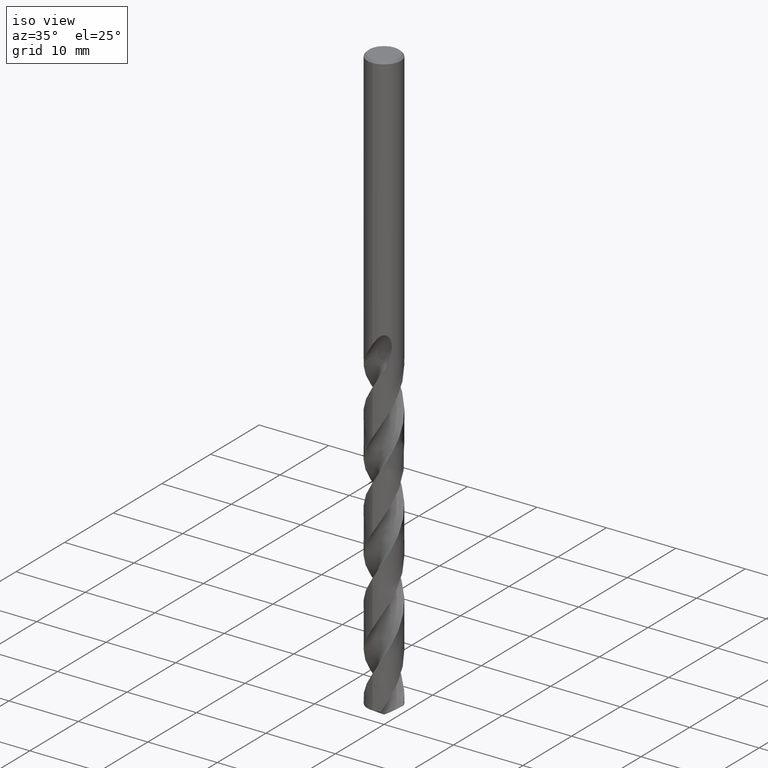
[diagram: clean part render]
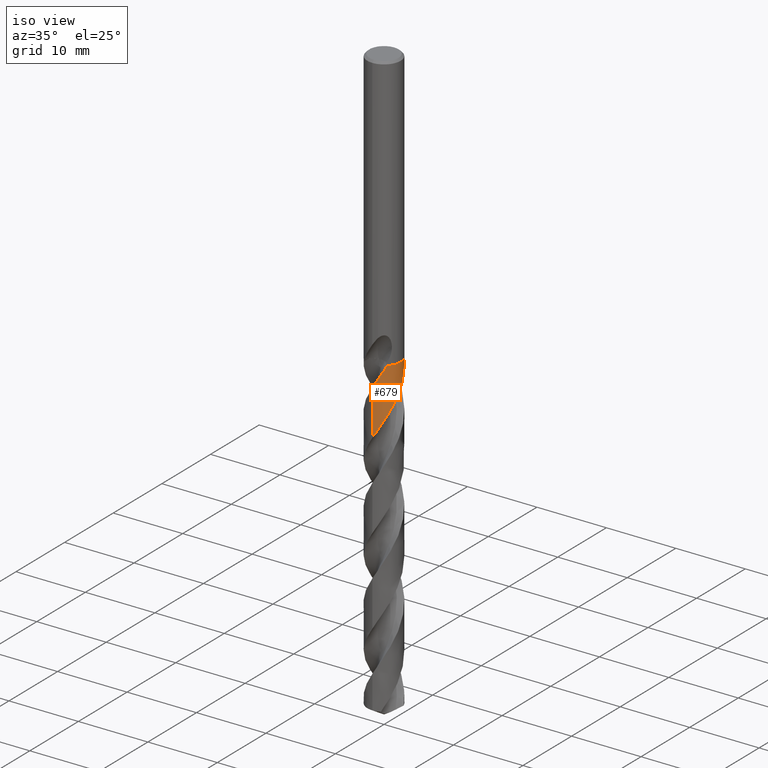
[diagram: same view with one face highlighted and labeled with its STEP entity id]
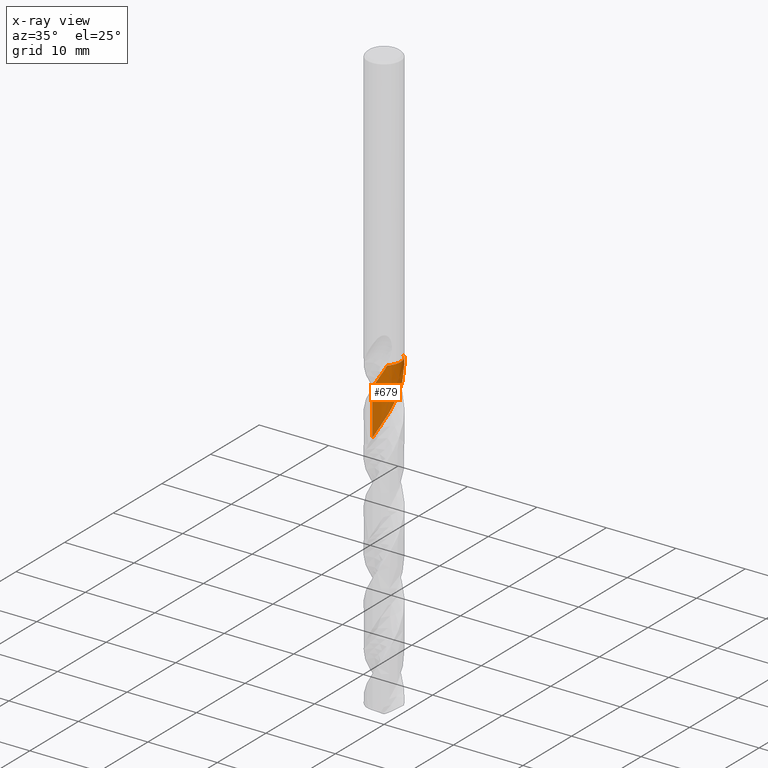
[diagram: x-ray of the same camera — body ghosted, the highlighted face saturated]
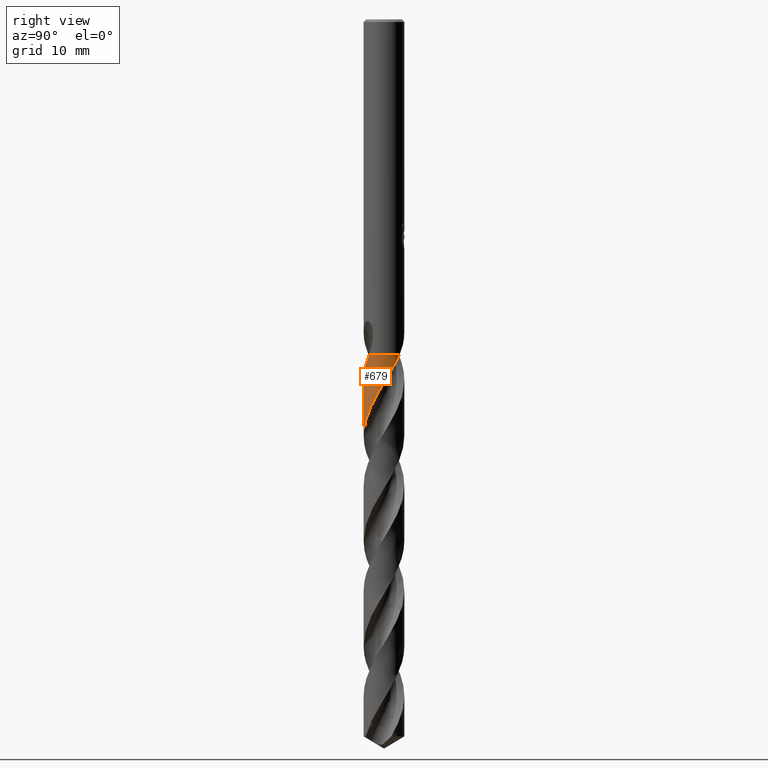
[diagram: same view with one face highlighted and labeled with its STEP entity id]
A machine part, iso view. The second image highlights one B-rep face of the part: STEP entity #679.
The next image is the same camera in x-ray: the body ghosted, the highlighted face saturated — about 0% of this face is hidden behind the body in this view.
A second angle (right view) of the same face is appended — the face is thin or edge-on in the first view.
In plain terms, the highlighted conical surface has half-angle 0 deg.
Its self-contained STEP definition (entity closure, byte-faithful):
#327=EDGE_CURVE('',#575,#745,#830,.T.);
#365=EDGE_CURVE('',#623,#577,#872,.T.);
#411=EDGE_CURVE('',#637,#745,#921,.T.);
#437=EDGE_CURVE('',#577,#443,#949,.T.);
#443=VERTEX_POINT('',#956);
#491=EDGE_CURVE('',#443,#575,#1011,.T.);
#575=VERTEX_POINT('',#1103);
#577=VERTEX_POINT('',#1105);
#623=VERTEX_POINT('',#1154);
#637=VERTEX_POINT('',#1169);
#679=ADVANCED_FACE('',(#1216),#1217,.T.);
#727=EDGE_CURVE('',#637,#623,#1269,.T.);
#745=VERTEX_POINT('',#1288);
#830=B_SPLINE_CURVE_WITH_KNOTS('',3,(#2235,#2236,#2237,#2238,#2239,#2240,#2241,#2242,#2243,#2244,#2245,#2246,#2247,#2248,#2249,#2250,#2251,#2252,#2253,#2254,#2255,#2256,#2257,#2258,#2259,#2260,#2261,#2262,#2263,#2264,#2265,#2266,#2267,#2268,#2269,#2270,#2271,#2272,#2273,#2274,#2275,#2276,#2277,#2278,#2279,#2280,#2281,#2282,#2283,#2284,#2285,#2286,#2287,#2288,#2289,#2290,#2291,#2292,#2293,#2294,#2295,#2296,#2297,#2298,#2299,#2300,#2301,#2302,#2303,#2304,#2305,#2306,#2307,#2308,#2309,#2310,#2311,#2312,#2313,#2314,#2315,#2316,#2317,#2318,#2319,#2320,#2321,#2322,#2323,#2324,#2325,#2326,#2327,#2328,#2329,#2330,#2331,#2332,#2333,#2334,#2335,#2336,#2337,#2338,#2339,#2340,#2341,#2342,#2343,#2344,#2345,#2346,#2347,#2348,#2349,#2350,#2351,#2352,#2353,#2354,#2355,#2356,#2357,#2358,#2359,#2360,#2361,#2362,#2363,#2364,#2365,#2366,#2367,#2368,#2369,#2370,#2371,#2372,#2373,#2374,#2375,#2376,#2377,#2378,#2379,#2380,#2381,#2382,#2383,#2384,#2385,#2386,#2387,#2388,#2389,#2390,#2391,#2392,#2393,#2394,#2395,#2396,#2397,#2398,#2399,#2400,#2401,#2402,#2403,#2404,#2405,#2406,#2407,#2408,#2409,#2410,#2411,#2412,#2413,#2414,#2415,#2416,#2417,#2418),.UNSPECIFIED.,.F.,.F.,(4,2,2,2,2,2,2,2,2,2,2,2,2,2,2,2,2,2,2,2,2,2,2,2,2,2,2,2,2,2,2,2,2,2,2,2,2,2,2,2,2,2,2,2,2,2,2,2,2,2,2,2,2,2,2,2,2,2,2,2,2,2,2,2,2,2,2,2,2,2,2,2,2,2,2,2,2,2,2,2,2,2,2,2,2,2,2,2,2,2,2,4),(0.0,0.143438582967313,0.18897240022158,0.21174478823111,0.226388954967888,0.238210347564266,0.247665539664253,0.255166162593993,0.261073932524339,0.265699092194842,0.269302027971929,0.272097249755301,0.27425874353166,0.275925844603622,0.277209002035574,0.545270615740692,0.610968527223378,0.647367519281041,0.67816058820399,0.714936742925638,0.782410715611551,0.828193026804679,0.910436755220717,1.25855043702384,1.43930409631707,1.58973860107341,1.66433431866712,1.82950084461108,3.16551249158848,3.67301193156523,4.50496680971604,5.83580409702664,6.68709595869321,6.76436596690435,7.87950224667467,9.20199859784488,9.62999246923701,10.7423405143973,11.5651736099712,11.9273323634021,13.2322755864186,13.5999853292225,14.894067487553,15.2700941181462,16.5503477097656,16.9378409727759,18.2012227224855,18.9957897062857,19.7257749141161,20.767892645877,21.5868721731323,21.9710034606034,23.2384957343121,24.0245641774315,24.751071347888,25.8031743734985,26.6223955370047,27.0032153524991,28.2744000633228,29.0527874918629,29.7766452740916,30.8364938185624,31.6558856997957,32.0340011346267,33.3094457196658,33.69989500068,34.9579411851871,35.7599903899307,36.4928559127281,37.5232029830674,38.3588199107786,38.7363946090334,40.0112638145604,40.4014397873743,41.6584286425505,42.4609408470208,43.1944981870686,44.2214523334824,45.0565057658319,45.4348814821175,46.7117333613768,47.1015074127995,48.3538727577222,49.1484810856745,49.8538868799005,50.9187764046734,51.4535114743323,51.7218137977154,51.8556700305199,51.9223701475563,51.955639096019,51.9888511024435),.UNSPECIFIED.);
#872=B_SPLINE_CURVE_WITH_KNOTS('',3,(#3209,#3210,#3211,#3212),.UNSPECIFIED.,.F.,.F.,(4,4),(0.0,0.0058717372104163),.UNSPECIFIED.);
#921=LINE('',#3856,#3857);
#949=CIRCLE('',#4189,2.3999);
#956=CARTESIAN_POINT('',(1.66943430058152,-1.72409661157428,-39.5));
#1011=B_SPLINE_CURVE_WITH_KNOTS('',3,(#5024,#5025,#5026,#5027),.UNSPECIFIED.,.F.,.F.,(4,4),(0.0,0.00532639576437017),.UNSPECIFIED.);
#1103=CARTESIAN_POINT('',(1.66811490938291,-1.72537320958596,-39.505));
#1105=CARTESIAN_POINT('',(1.52691321260396,1.85150102651213,-39.5));
#1154=CARTESIAN_POINT('',(1.52928701150974,1.84954083482635,-39.505));
#1169=CARTESIAN_POINT('',(1.39590962746976E-013,-2.39992129238102,-49.0939070995192));
#1216=FACE_OUTER_BOUND('',#8036,.T.);
#1217=CONICAL_SURFACE('',#8037,2.39995,2.21936493711745E-006);
#1269=B_SPLINE_CURVE_WITH_KNOTS('',3,(#8200,#8201,#8202,#8203,#8204,#8205,#8206,#8207,#8208,#8209,#8210,#8211,#8212,#8213,#8214,#8215,#8216,#8217,#8218,#8219,#8220,#8221,#8222,#8223,#8224,#8225,#8226,#8227,#8228,#8229,#8230,#8231,#8232,#8233,#8234,#8235,#8236,#8237,#8238,#8239,#8240,#8241,#8242,#8243,#8244,#8245,#8246,#8247,#8248,#8249,#8250,#8251,#8252,#8253,#8254,#8255,#8256,#8257,#8258,#8259,#8260,#8261,#8262,#8263,#8264,#8265,#8266,#8267,#8268,#8269,#8270,#8271,#8272,#8273,#8274,#8275,#8276,#8277,#8278,#8279,#8280,#8281,#8282,#8283,#8284,#8285,#8286,#8287,#8288,#8289,#8290,#8291,#8292,#8293,#8294,#8295,#8296,#8297,#8298,#8299,#8300,#8301,#8302,#8303,#8304,#8305,#8306,#8307,#8308,#8309,#8310,#8311,#8312,#8313,#8314,#8315,#8316,#8317,#8318,#8319,#8320,#8321,#8322,#8323,#8324,#8325,#8326,#8327,#8328,#8329,#8330,#8331,#8332,#8333,#8334,#8335,#8336,#8337,#8338,#8339,#8340,#8341,#8342,#8343,#8344,#8345,#8346,#8347,#8348,#8349,#8350,#8351,#8352,#8353,#8354,#8355),.UNSPECIFIED.,.F.,.F.,(4,2,2,2,2,2,2,2,2,2,2,2,2,2,2,2,2,2,2,2,2,2,2,2,2,2,2,2,2,2,2,2,2,2,2,2,2,2,2,2,2,2,2,2,2,2,2,2,2,2,2,2,2,2,2,2,2,2,2,2,2,2,2,2,2,2,2,2,2,2,2,2,2,2,2,2,2,4),(0.0,0.0402327928803193,1.38903119374819,2.13117349160278,2.9591991795023,3.73005423952436,4.52057600492061,5.35231171466824,6.62681411156884,6.98282192682068,7.93365802021167,8.76144632924196,9.56262131782396,10.4090304945398,11.7021636166299,11.8991939045425,12.7212848730593,13.141864655572,13.8164163656662,14.618450233121,15.4516505392066,16.7199272232511,17.0589265144744,18.007947862366,18.8401785216149,20.1450233537851,20.3381026404346,21.848755276443,22.003009137719,22.79855684794,23.2191353993897,23.9453847905557,24.7464449170727,25.5790501242155,26.8643056340974,27.0644525482908,27.9039243285927,28.325316624469,28.9951488536104,29.7988459046644,30.633686418551,31.9039011087341,32.2430706288613,33.1918243476534,34.0259653422578,35.3255750183418,35.5223672377832,36.3296839464237,36.7516585353749,37.4458302696205,38.2501071427092,39.0859227169022,40.3617966786744,40.7162499825754,41.6794763123978,42.5116974494405,43.3315890440187,44.1673358445235,45.4576967949259,45.6520906190568,46.4967948264689,46.9833868957709,47.5980380741667,48.6585785050657,50.236412092438,50.4481753074767,50.8712671672445,51.1432794628748,51.361132327737,51.4426271856234,51.4651122279526,51.4950346472889,51.5141423474545,51.5354039871773,51.5654107393933,51.640015608494,51.7495302885947,51.8436416790988),.UNSPECIFIED.);
#1288=CARTESIAN_POINT('',(6.36419890267209E-015,-2.39990676877382,-42.5498696774653));
#2235=CARTESIAN_POINT('',(1.66811490938291,-1.72537320958596,-39.505));
#2236=CARTESIAN_POINT('',(1.65116147606477,-1.74176415402722,-39.5465931210059));
#2237=CARTESIAN_POINT('',(1.63388868674569,-1.75798173474751,-39.5882514765463));
#2238=CARTESIAN_POINT('',(1.61061557155732,-1.77918424066617,-39.6430816899698));
#2239=CARTESIAN_POINT('',(1.60497321455881,-1.78427597643142,-39.6562785549217));
#2240=CARTESIAN_POINT('',(1.59644743800167,-1.79189620135695,-39.6760670627727));
#2241=CARTESIAN_POINT('',(1.59359572092572,-1.79443284718264,-39.682660748527));
#2242=CARTESIAN_POINT('',(1.58889341596061,-1.7985955146213,-39.6934910385586));
#2243=CARTESIAN_POINT('',(1.58704903345156,-1.80022319283409,-39.6977283922856));
#2244=CARTESIAN_POINT('',(1.58370816987728,-1.80316238341382,-39.7053844341415));
#2245=CARTESIAN_POINT('',(1.58221326642348,-1.8044742656964,-39.7088032349189));
#2246=CARTESIAN_POINT('',(1.57951771842561,-1.80683386382585,-39.7149552232651));
#2247=CARTESIAN_POINT('',(1.57831812511428,-1.80788184492786,-39.7176885393946));
#2248=CARTESIAN_POINT('',(1.57616374451674,-1.80976015820789,-39.7225892768967));
#2249=CARTESIAN_POINT('',(1.57520964233837,-1.81059067392703,-39.7247568108499));
#2250=CARTESIAN_POINT('',(1.57350206034423,-1.8120746963569,-39.7286310121253));
#2251=CARTESIAN_POINT('',(1.57274901834724,-1.81272832603754,-39.7303377661627));
#2252=CARTESIAN_POINT('',(1.57140518959912,-1.81389328133732,-39.7333803700108));
#2253=CARTESIAN_POINT('',(1.57081467787069,-1.81440468713693,-39.7347162817111));
#2254=CARTESIAN_POINT('',(1.56976341032985,-1.81531422672376,-39.7370926263615));
#2255=CARTESIAN_POINT('',(1.56930282484374,-1.81571241156559,-39.738133101121));
#2256=CARTESIAN_POINT('',(1.56848445131426,-1.81641936666623,-39.7399806568409));
#2257=CARTESIAN_POINT('',(1.56812676737472,-1.8167281689381,-39.740787765297));
#2258=CARTESIAN_POINT('',(1.56749221793196,-1.81727567268509,-39.7422189119745));
#2259=CARTESIAN_POINT('',(1.56721541558701,-1.81751439380202,-39.7428429674367));
#2260=CARTESIAN_POINT('',(1.56672495886043,-1.81793718028015,-39.7439482891758));
#2261=CARTESIAN_POINT('',(1.56651134240169,-1.81812125763061,-39.7444295662627));
#2262=CARTESIAN_POINT('',(1.56613320902281,-1.8184469861875,-39.7452812490313));
#2263=CARTESIAN_POINT('',(1.56596871471264,-1.81858864465855,-39.7456516614248));
#2264=CARTESIAN_POINT('',(1.53143321229718,-1.84832161202099,-39.8234019733298));
#2265=CARTESIAN_POINT('',(1.49619614341508,-1.87699252819881,-39.8990170558229));
#2266=CARTESIAN_POINT('',(1.45004601048774,-1.91233437444676,-39.9939132932202));
#2267=CARTESIAN_POINT('',(1.44089047437116,-1.91924270499907,-40.0125527009688));
#2268=CARTESIAN_POINT('',(1.42653647541573,-1.92991194592203,-40.0415134372359));
#2269=CARTESIAN_POINT('',(1.42139782129794,-1.93369981994355,-40.0518299635865));
#2270=CARTESIAN_POINT('',(1.41187028036074,-1.94066423016111,-40.0708697820343));
#2271=CARTESIAN_POINT('',(1.40748944336542,-1.94384387522975,-40.0795904814148));
#2272=CARTESIAN_POINT('',(1.39784336634416,-1.95079527097975,-40.0987231184875));
#2273=CARTESIAN_POINT('',(1.39257386165574,-1.9545604519321,-40.1091300911138));
#2274=CARTESIAN_POINT('',(1.37757931616427,-1.96518281439251,-40.1386285678323));
#2275=CARTESIAN_POINT('',(1.36781664472034,-1.9719904964552,-40.157698398382));
#2276=CARTESIAN_POINT('',(1.3513322897339,-1.98330373810929,-40.1897193768653));
#2277=CARTESIAN_POINT('',(1.34464625929491,-1.98784285886678,-40.2026584058686));
#2278=CARTESIAN_POINT('',(1.32588660096736,-2.0004407833478,-40.2388547898322));
#2279=CARTESIAN_POINT('',(1.31381472672285,-2.00839055266296,-40.2620607244986));
#2280=CARTESIAN_POINT('',(1.2495589539294,-2.04986805555073,-40.3854330591197));
#2281=CARTESIAN_POINT('',(1.19664572311466,-2.08117473323276,-40.4861201634756));
#2282=CARTESIAN_POINT('',(1.11518339459187,-2.12530015236676,-40.6387293243245));
#2283=CARTESIAN_POINT('',(1.08707764741359,-2.13981138435643,-40.6909666859756));
#2284=CARTESIAN_POINT('',(1.03513475230194,-2.16534545737123,-40.7866322654659));
#2285=CARTESIAN_POINT('',(1.01134989491952,-2.17655620772737,-40.8301102823148));
#2286=CARTESIAN_POINT('',(0.975501226180307,-2.19273852149848,-40.895113230312));
#2287=CARTESIAN_POINT('',(0.963570493175203,-2.19800755556293,-40.9166608947215));
#2288=CARTESIAN_POINT('',(0.925074689940882,-2.21463475586752,-40.9859038559984));
#2289=CARTESIAN_POINT('',(0.898329716990517,-2.22561829564998,-41.0335937436713));
#2290=CARTESIAN_POINT('',(0.653364587995583,-2.32107797681439,-41.4671678374935));
#2291=CARTESIAN_POINT('',(0.423931146354305,-2.37375436933639,-41.8501641219437));
#2292=CARTESIAN_POINT('',(0.10169018656298,-2.39940181344134,-42.3824464041186));
#2293=CARTESIAN_POINT('',(0.0127008838942802,-2.40151939328695,-42.528859622455));
#2294=CARTESIAN_POINT('',(-0.221834822496099,-2.3940734935205,-42.9157498093459));
#2295=CARTESIAN_POINT('',(-0.366865115732515,-2.37618532088292,-43.1556884120948));
#2296=CARTESIAN_POINT('',(-0.737518458787493,-2.2956709165215,-43.7801763360115));
#2297=CARTESIAN_POINT('',(-0.957100029922716,-2.21312982678983,-44.1623818297683));
#2298=CARTESIAN_POINT('',(-1.29182724761457,-2.0280590888187,-44.7926000931888));
#2299=CARTESIAN_POINT('',(-1.41543726413693,-1.94381399111769,-45.0377159060461));
#2300=CARTESIAN_POINT('',(-1.5408949353697,-1.8399479208375,-45.3058080923538));
#2301=CARTESIAN_POINT('',(-1.551259784446,-1.83121785577618,-45.3281135925533));
#2302=CARTESIAN_POINT('',(-1.71006693566245,-1.69514256900568,-45.6724537055891));
#2303=CARTESIAN_POINT('',(-1.84250679118536,-1.55016988305351,-45.994057772671));
#2304=CARTESIAN_POINT('',(-2.09031476177243,-1.20166761681841,-46.6981152079286));
#2305=CARTESIAN_POINT('',(-2.19660162927911,-0.99413634405297,-47.0781708229937));
#2306=CARTESIAN_POINT('',(-2.29567196037508,-0.703652885282071,-47.5838759611498));
#2307=CARTESIAN_POINT('',(-2.31655801739597,-0.631509934933049,-47.7074323322997));
#2308=CARTESIAN_POINT('',(-2.37944737857188,-0.368684297771407,-48.1523177055245));
#2309=CARTESIAN_POINT('',(-2.40152439302646,-0.17412504180941,-48.4723929995621));
#2310=CARTESIAN_POINT('',(-2.39857650537643,0.165101423576782,-49.0314962391847));
#2311=CARTESIAN_POINT('',(-2.38432147457636,0.309003263710101,-49.2686246987079));
#2312=CARTESIAN_POINT('',(-2.34526143935364,0.513239847640523,-49.6108497621972));
#2313=CARTESIAN_POINT('',(-2.33085466542799,0.575133748956917,-49.7153451379955));
#2314=CARTESIAN_POINT('',(-2.25333546393736,0.857018687743615,-50.1969848899074));
#2315=CARTESIAN_POINT('',(-2.16137000866249,1.06797675955176,-50.5725517498199));
#2316=CARTESIAN_POINT('',(-2.00690504003547,1.31762680374388,-51.0557147299349));
#2317=CARTESIAN_POINT('',(-1.97076242616768,1.37109431424682,-51.1618291057024));
#2318=CARTESIAN_POINT('',(-1.79792882352669,1.60580944739838,-51.6420316233227));
#2319=CARTESIAN_POINT('',(-1.63800948112029,1.7686681113756,-52.0146055409369));
#2320=CARTESIAN_POINT('',(-1.40508635304343,1.94672758429067,-52.4971374394245));
#2321=CARTESIAN_POINT('',(-1.3510329159744,1.98462135183266,-52.6056684545406));
#2322=CARTESIAN_POINT('',(-1.10642344651025,2.1414813852968,-53.0843739413043));
#2323=CARTESIAN_POINT('',(-0.901156598529353,2.23564711673336,-53.4531124596419));
#2324=CARTESIAN_POINT('',(-0.620532163105523,2.3193194770344,-53.9350668594911));
#2325=CARTESIAN_POINT('',(-0.554557888877242,2.33597183448145,-54.0469232482089));
#2326=CARTESIAN_POINT('',(-0.270906387915406,2.39487841291531,-54.5241590440403));
#2327=CARTESIAN_POINT('',(-0.0485176783449877,2.40968036700355,-54.8881945367855));
#2328=CARTESIAN_POINT('',(0.31196493317171,2.3836611446061,-55.4830408624056));
#2329=CARTESIAN_POINT('',(0.449930517895109,2.36150069362037,-55.7123160818027));
#2330=CARTESIAN_POINT('',(0.709315473802762,2.29629463660026,-56.1531701128167));
#2331=CARTESIAN_POINT('',(0.830875874284438,2.25516671859375,-56.3639227404292));
#2332=CARTESIAN_POINT('',(1.11672079995132,2.13216515903838,-56.8761792256375));
#2333=CARTESIAN_POINT('',(1.27592269334048,2.040871974769,-57.1764227115596));
#2334=CARTESIAN_POINT('',(1.53884201911965,1.847248000466,-57.7145927955269));
#2335=CARTESIAN_POINT('',(1.64671349221809,1.75178192636427,-57.9508489702124));
#2336=CARTESIAN_POINT('',(1.79173730730209,1.59810797428311,-58.2986092316769));
#2337=CARTESIAN_POINT('',(1.83593376736958,1.54713113831308,-58.4095225497426));
#2338=CARTESIAN_POINT('',(2.01644801454809,1.32028787890205,-58.887086123077));
#2339=CARTESIAN_POINT('',(2.13016912801204,1.12768975868667,-59.2523685390289));
#2340=CARTESIAN_POINT('',(2.26877591779933,0.79464442716488,-59.8460811466226));
#2341=CARTESIAN_POINT('',(2.3107023462164,0.662887388124767,-60.0729693385975));
#2342=CARTESIAN_POINT('',(2.36913364734825,0.40398199931069,-60.5104596433244));
#2343=CARTESIAN_POINT('',(2.38725937668877,0.277528444487602,-60.7202602456183));
#2344=CARTESIAN_POINT('',(2.40680844494046,-0.0342601334988968,-61.2345160019808));
#2345=CARTESIAN_POINT('',(2.39702633079424,-0.219336127130101,-61.5376872566477));
#2346=CARTESIAN_POINT('',(2.34210674247556,-0.543106338794243,-62.0789373323042));
#2347=CARTESIAN_POINT('',(2.30536512949553,-0.682469960627214,-62.3153124830523));
#2348=CARTESIAN_POINT('',(2.23353359251668,-0.880664413638415,-62.6622643375863));
#2349=CARTESIAN_POINT('',(2.20812806561546,-0.942554215829025,-62.7722488096998));
#2350=CARTESIAN_POINT('',(2.08688128629047,-1.206029397516,-63.2500346932636));
#2351=CARTESIAN_POINT('',(1.96570594786753,-1.39487051047167,-63.616446421632));
#2352=CARTESIAN_POINT('',(1.73098507114802,-1.66798650177637,-64.209141872479));
#2353=CARTESIAN_POINT('',(1.63318738039241,-1.76384492689005,-64.4338774879586));
#2354=CARTESIAN_POINT('',(1.42985335018422,-1.93169628189212,-64.8684799466971));
#2355=CARTESIAN_POINT('',(1.32556215436891,-2.00470682334952,-65.077566892137));
#2356=CARTESIAN_POINT('',(1.05539245909684,-2.16347267164499,-65.5934156951085));
#2357=CARTESIAN_POINT('',(0.884493225595265,-2.23876788116769,-65.8988753944047));
#2358=CARTESIAN_POINT('',(0.569258041729236,-2.33590207250345,-66.442539136214));
#2359=CARTESIAN_POINT('',(0.428210019997963,-2.36583483933049,-66.6790138707007));
#2360=CARTESIAN_POINT('',(0.219288342523361,-2.39084502180155,-67.0253121310952));
#2361=CARTESIAN_POINT('',(0.153047477618326,-2.39599659171416,-67.1345424120547));
#2362=CARTESIAN_POINT('',(-0.137135892543334,-2.40648657073053,-67.6128894968347));
#2363=CARTESIAN_POINT('',(-0.361116168616454,-2.38320452771062,-67.9805911683455));
#2364=CARTESIAN_POINT('',(-0.645253503993945,-2.31261435567558,-68.4624432760441));
#2365=CARTESIAN_POINT('',(-0.711084234583714,-2.29322748650226,-68.5752521138275));
#2366=CARTESIAN_POINT('',(-0.9850838981558,-2.19960742888627,-69.0522253023217));
#2367=CARTESIAN_POINT('',(-1.18342546176254,-2.09958244952434,-69.4150683942653));
#2368=CARTESIAN_POINT('',(-1.48124668548575,-1.8935760450583,-70.0110702882278));
#2369=CARTESIAN_POINT('',(-1.58984197492108,-1.80335361111552,-70.242698467589));
#2370=CARTESIAN_POINT('',(-1.78122586808897,-1.61358195260498,-70.6869474981501));
#2371=CARTESIAN_POINT('',(-1.86521345391904,-1.51572613016889,-70.8987168887108));
#2372=CARTESIAN_POINT('',(-2.04748888823588,-1.26508725890224,-71.4088599461833));
#2373=CARTESIAN_POINT('',(-2.13703768393102,-1.10710002445996,-71.7059973105694));
#2374=CARTESIAN_POINT('',(-2.26546690010244,-0.805643189209054,-72.2460604143777));
#2375=CARTESIAN_POINT('',(-2.31050747490729,-0.665585379284214,-72.487308240565));
#2376=CARTESIAN_POINT('',(-2.35691290071327,-0.457429947106647,-72.8382966046047));
#2377=CARTESIAN_POINT('',(-2.36865637047633,-0.392101360946804,-72.9474189586239));
#2378=CARTESIAN_POINT('',(-2.4081377207014,-0.104491070748836,-73.4256540705857));
#2379=CARTESIAN_POINT('',(-2.40739759927989,0.120694278505943,-73.7933517001668));
#2380=CARTESIAN_POINT('',(-2.36561294302115,0.410453643938392,-74.275171116568));
#2381=CARTESIAN_POINT('',(-2.35291851633454,0.477877690202938,-74.3879508276016));
#2382=CARTESIAN_POINT('',(-2.28723206817398,0.759773680727106,-74.8647499891573));
#2383=CARTESIAN_POINT('',(-2.20761564156258,0.96705667794054,-75.2274510231663));
#2384=CARTESIAN_POINT('',(-2.03247732140057,1.28407962590975,-75.8235454575178));
#2385=CARTESIAN_POINT('',(-1.95350504238992,1.40128593579329,-76.0554091406508));
#2386=CARTESIAN_POINT('',(-1.78363579022472,1.61095115656095,-76.5001898216446));
#2387=CARTESIAN_POINT('',(-1.69454198220989,1.70443024372382,-76.7122519361463));
#2388=CARTESIAN_POINT('',(-1.46360828087384,1.9105974396621,-77.2218395428718));
#2389=CARTESIAN_POINT('',(-1.31581164581855,2.01522097984483,-77.5181356378715));
#2390=CARTESIAN_POINT('',(-1.02926971189727,2.17302943666358,-78.0572934422214));
#2391=CARTESIAN_POINT('',(-0.894479856502548,2.23190648105006,-78.2984873552952));
#2392=CARTESIAN_POINT('',(-0.691914577941908,2.29904749131516,-78.6497000572179));
#2393=CARTESIAN_POINT('',(-0.627931508022419,2.31733965498989,-78.7591014290928));
#2394=CARTESIAN_POINT('',(-0.345130843972451,2.38562229166589,-79.2383535086634));
#2395=CARTESIAN_POINT('',(-0.120548726088138,2.40745937471844,-79.6067804957609));
#2396=CARTESIAN_POINT('',(0.172339213038051,2.39477605029725,-80.0892727954087));
#2397=CARTESIAN_POINT('',(0.240653015866008,2.38887737822682,-80.2019883810588));
#2398=CARTESIAN_POINT('',(0.526947788553605,2.35175652394658,-80.6775446468846));
#2399=CARTESIAN_POINT('',(0.740473343401162,2.29351594282389,-81.039065320314));
#2400=CARTESIAN_POINT('',(1.07165870121211,2.15199043151884,-81.6317833912839));
#2401=CARTESIAN_POINT('',(1.19509632129111,2.0859567073021,-81.8614448077191));
#2402=CARTESIAN_POINT('',(1.41582389199752,1.94185109987949,-82.2959954222848));
#2403=CARTESIAN_POINT('',(1.51426408851374,1.86611270597662,-82.5000684476928));
#2404=CARTESIAN_POINT('',(1.74560065727033,1.65769248822726,-83.0127572718424));
#2405=CARTESIAN_POINT('',(1.86958984742793,1.51647113310599,-83.3200935655879));
#2406=CARTESIAN_POINT('',(2.02925551537874,1.2848950925315,-83.783398996456));
#2407=CARTESIAN_POINT('',(2.07805427831645,1.20438322635556,-83.9381097994087));
#2408=CARTESIAN_POINT('',(2.1440723141472,1.07943461053944,-84.170629248629));
#2409=CARTESIAN_POINT('',(2.16489362658377,1.03704479745883,-84.2482872608075));
#2410=CARTESIAN_POINT('',(2.19420908478034,0.972625000762642,-84.3647286959565));
#2411=CARTESIAN_POINT('',(2.2036496739923,0.95104220373981,-84.40348264413));
#2412=CARTESIAN_POINT('',(2.21731525717278,0.91850409975766,-84.4615549009982));
#2413=CARTESIAN_POINT('',(2.22178037182725,0.907650198071525,-84.4808682351915));
#2414=CARTESIAN_POINT('',(2.22835262900692,0.891335128804848,-84.5098161775569));
#2415=CARTESIAN_POINT('',(2.23051987208736,0.885897820667505,-84.5194499042829));
#2416=CARTESIAN_POINT('',(2.23481069608702,0.875017193550028,-84.5387012703677));
#2417=CARTESIAN_POINT('',(2.23693430313827,0.86957399950278,-84.5483182754972));
#2418=CARTESIAN_POINT('',(2.23903745796532,0.86412456383798,-84.5579345143339));
#3209=CARTESIAN_POINT('',(1.52928701150974,1.84954083482635,-39.505));
#3210=CARTESIAN_POINT('',(1.52849651035056,1.85019445341859,-39.5033330562315));
#3211=CARTESIAN_POINT('',(1.52770524382159,1.85084785158106,-39.5016663912984));
#3212=CARTESIAN_POINT('',(1.52691321260396,1.85150102651213,-39.5));
#3856=CARTESIAN_POINT('',(2.93905223665855E-016,-2.39995,-62.0289672571669));
#3857=VECTOR('',#8889,1.0);
#4189=AXIS2_PLACEMENT_3D('',#8911,#8912,#8913);
#5024=CARTESIAN_POINT('',(1.66943430058152,-1.72409661157428,-39.5));
#5025=CARTESIAN_POINT('',(1.66899483379386,-1.72452215026039,-39.5016667521232));
#5026=CARTESIAN_POINT('',(1.66855503683995,-1.7249476830705,-39.5033334191126));
#5027=CARTESIAN_POINT('',(1.66811490938291,-1.72537320958596,-39.505));
#8036=EDGE_LOOP('',(#9229,#9230,#9231,#9232,#9233,#9234));
#8037=AXIS2_PLACEMENT_3D('',#9235,#9236,#9237);
#8200=CARTESIAN_POINT('',(-1.05190703588295,2.15719530591459,-84.5579345143339));
#8201=CARTESIAN_POINT('',(-1.05812048703209,2.15416542995723,-84.5464425194802));
#8202=CARTESIAN_POINT('',(-1.06435257205775,2.15109331972009,-84.5348917923083));
#8203=CARTESIAN_POINT('',(-1.28089696884544,2.04315873865197,-84.1328781917143));
#8204=CARTESIAN_POINT('',(-1.47512611806106,1.90782913115262,-83.7492670850535));
#8205=CARTESIAN_POINT('',(-1.74152823472032,1.65649117656112,-83.1461625485864));
#8206=CARTESIAN_POINT('',(-1.82866042695925,1.55977862686695,-82.9312603000105));
#8207=CARTESIAN_POINT('',(-1.99568912166911,1.34099682677111,-82.4783541236491));
#8208=CARTESIAN_POINT('',(-2.07310845211272,1.21789023382859,-82.2409356316894));
#8209=CARTESIAN_POINT('',(-2.20020629637259,0.968150227753388,-81.7797870602057));
#8210=CARTESIAN_POINT('',(-2.25112346057069,0.842978045476632,-81.556383980793));
#8211=CARTESIAN_POINT('',(-2.33243877896149,0.582094425650156,-81.1060825823318));
#8212=CARTESIAN_POINT('',(-2.36214108539669,0.446602263839434,-80.879415943533));
#8213=CARTESIAN_POINT('',(-2.39877510665427,0.164595331028765,-80.4119337754172));
#8214=CARTESIAN_POINT('',(-2.40431473721018,0.0188259464764778,-80.1712277180322));
#8215=CARTESIAN_POINT('',(-2.38493605001274,-0.348773125064742,-79.5643071495762));
#8216=CARTESIAN_POINT('',(-2.34232065132785,-0.568247782545983,-79.2022767384903));
#8217=CARTESIAN_POINT('',(-2.25005197809442,-0.837293700292464,-78.7323578262482));
#8218=CARTESIAN_POINT('',(-2.22764159339318,-0.895225668148502,-78.6295180323868));
#8219=CARTESIAN_POINT('',(-2.13691212921024,-1.10508422061365,-78.2523063370218));
#8220=CARTESIAN_POINT('',(-2.05514578402182,-1.25063807744744,-77.9801054945456));
#8221=CARTESIAN_POINT('',(-1.87496960390908,-1.50514987082317,-77.4673100402652));
#8222=CARTESIAN_POINT('',(-1.78067910900892,-1.6155729344699,-77.2275476025913));
#8223=CARTESIAN_POINT('',(-1.57682559032826,-1.81471298727721,-76.7579036372394));
#8224=CARTESIAN_POINT('',(-1.46810354497981,-1.90375868699304,-76.5282756045652));
#8225=CARTESIAN_POINT('',(-1.22956685944925,-2.06641573637468,-76.0536576281583));
#8226=CARTESIAN_POINT('',(-1.09973252353516,-2.13830949402846,-75.8087795397067));
#8227=CARTESIAN_POINT('',(-0.757394064125747,-2.28851641507178,-75.1924569366797));
#8228=CARTESIAN_POINT('',(-0.538895076336123,-2.34953354899685,-74.8252691498464));
#8229=CARTESIAN_POINT('',(-0.281368235749715,-2.38367436200856,-74.3958674492572));
#8230=CARTESIAN_POINT('',(-0.2472728091678,-2.38745232631269,-74.3390456051529));
#8231=CARTESIAN_POINT('',(-0.0701976023003453,-2.40323236210727,-74.0452191604377));
#8232=CARTESIAN_POINT('',(0.0737783455719524,-2.40316115814468,-73.8096641913551));
#8233=CARTESIAN_POINT('',(0.290582731439273,-2.38345799834869,-73.4520526775349));
#8234=CARTESIAN_POINT('',(0.363544660190693,-2.37342026911254,-73.3311774792679));
#8235=CARTESIAN_POINT('',(0.551847451357999,-2.33864342170448,-73.0158050927059));
#8236=CARTESIAN_POINT('',(0.665938434904746,-2.30874309405499,-72.8206959675212));
#8237=CARTESIAN_POINT('',(0.910044337524187,-2.2251586840558,-72.3954937772889));
#8238=CARTESIAN_POINT('',(1.03849946776928,-2.16820019758146,-72.1658943583734));
#8239=CARTESIAN_POINT('',(1.28896431340955,-2.0297045219745,-71.6953907653869));
#8240=CARTESIAN_POINT('',(1.40968666841094,-1.94776319364512,-71.4546288823526));
#8241=CARTESIAN_POINT('',(1.69319734416004,-1.71520050770538,-70.8500121867083));
#8242=CARTESIAN_POINT('',(1.84389324203228,-1.55200366261594,-70.4902562253336));
#8243=CARTESIAN_POINT('',(2.00378995231095,-1.32217928959647,-70.0277768859317));
#8244=CARTESIAN_POINT('',(2.03569364716812,-1.27251549331143,-69.9300204363198));
#8245=CARTESIAN_POINT('',(2.15010897434133,-1.07902848122781,-69.5590187797695));
#8246=CARTESIAN_POINT('',(2.21952458916956,-0.92796496130357,-69.2878873373049));
#8247=CARTESIAN_POINT('',(2.31960745726948,-0.632815685423762,-68.775492116028));
#8248=CARTESIAN_POINT('',(2.35365093155019,-0.491165360416227,-68.5350359841829));
#8249=CARTESIAN_POINT('',(2.40763913297124,-0.122203617654664,-67.9203066765689));
#8250=CARTESIAN_POINT('',(2.40833550875835,0.106382963384133,-67.5504028716472));
#8251=CARTESIAN_POINT('',(2.37234266596055,0.364600928122999,-67.1193480670188));
#8252=CARTESIAN_POINT('',(2.36701066063384,0.397753168779003,-67.0637348700813));
#8253=CARTESIAN_POINT('',(2.31367556949932,0.689996891352432,-66.5728082799777));
#8254=CARTESIAN_POINT('',(2.22411231357211,0.939328135855007,-66.1461643241569));
#8255=CARTESIAN_POINT('',(2.08287470905158,1.1925406978114,-65.6666794536083));
#8256=CARTESIAN_POINT('',(2.06941064669022,1.21575566281595,-65.6222324969902));
#8257=CARTESIAN_POINT('',(1.98389229705909,1.35765368368202,-65.348342582158));
#8258=CARTESIAN_POINT('',(1.90194271020262,1.47031832031622,-65.1202654120775));
#8259=CARTESIAN_POINT('',(1.76206557616716,1.631056189603,-64.7702474971421));
#8260=CARTESIAN_POINT('',(1.71119410018599,1.68434434591621,-64.6493631122142));
#8261=CARTESIAN_POINT('',(1.56614350176834,1.82294267269719,-64.3191022595542));
#8262=CARTESIAN_POINT('',(1.46760486739959,1.90316198121078,-64.1089991790785));
#8263=CARTESIAN_POINT('',(1.24793324688068,2.05475956141679,-63.6691971985698));
#8264=CARTESIAN_POINT('',(1.12590513318196,2.12409248549776,-63.439875703447));
#8265=CARTESIAN_POINT('',(0.865898826565201,2.24303901955076,-62.9698104554982));
#8266=CARTESIAN_POINT('',(0.728348711960886,2.29137247346252,-62.7291971688656));
#8267=CARTESIAN_POINT('',(0.369998206330175,2.38184171567168,-62.1198411522962));
#8268=CARTESIAN_POINT('',(0.146087123208194,2.40593294887639,-61.7552481459065));
#8269=CARTESIAN_POINT('',(-0.112457967975046,2.39756556273693,-61.3277577708027));
#8270=CARTESIAN_POINT('',(-0.147207278885578,2.39568275972509,-61.2701114221066));
#8271=CARTESIAN_POINT('',(-0.327664250397953,2.38196150890238,-60.9709492209295));
#8272=CARTESIAN_POINT('',(-0.472356452492976,2.35757664278509,-60.7309276333984));
#8273=CARTESIAN_POINT('',(-0.685461634496235,2.30115466058017,-60.3687929959526));
#8274=CARTESIAN_POINT('',(-0.755708597814737,2.27904642781289,-60.2479212755514));
#8275=CARTESIAN_POINT('',(-0.934529167083873,2.21360681827214,-59.9342860043136));
#8276=CARTESIAN_POINT('',(-1.0410686123499,2.16553880473659,-59.7409249961131));
#8277=CARTESIAN_POINT('',(-1.26698963831741,2.04306495863345,-59.3174258674065));
#8278=CARTESIAN_POINT('',(-1.38421325170131,1.96555141904866,-59.087796861198));
#8279=CARTESIAN_POINT('',(-1.60820695262421,1.78736152640524,-58.6172578785696));
#8280=CARTESIAN_POINT('',(-1.71364163060163,1.68650271865479,-58.3764909241312));
#8281=CARTESIAN_POINT('',(-1.95451784419681,1.4101448913053,-57.7720206869786));
#8282=CARTESIAN_POINT('',(-2.0759682813039,1.22426846992296,-57.4124105757287));
#8283=CARTESIAN_POINT('',(-2.19541751284436,0.971249110000979,-56.9502259550212));
#8284=CARTESIAN_POINT('',(-2.21860245453009,0.917059231747565,-56.8526112297821));
#8285=CARTESIAN_POINT('',(-2.29916423046463,0.707707839041988,-56.4823708458083));
#8286=CARTESIAN_POINT('',(-2.34249466518773,0.547597997984247,-56.2118420311296));
#8287=CARTESIAN_POINT('',(-2.39231540351041,0.240282316437164,-55.6999927638267));
#8288=CARTESIAN_POINT('',(-2.40245300452108,0.0949052258835766,-55.4594695900867));
#8289=CARTESIAN_POINT('',(-2.39466242338252,-0.276564481112726,-54.8469186541856));
#8290=CARTESIAN_POINT('',(-2.35793648525849,-0.500788653209456,-54.4791704219614));
#8291=CARTESIAN_POINT('',(-2.28034839843776,-0.748902517393691,-54.0494396542216));
#8292=CARTESIAN_POINT('',(-2.26946375638024,-0.781267877776932,-53.9928789801115));
#8293=CARTESIAN_POINT('',(-2.21028530374735,-0.945523620545399,-53.7043227044901));
#8294=CARTESIAN_POINT('',(-2.15111834319435,-1.07342062944044,-53.4736971695335));
#8295=CARTESIAN_POINT('',(-2.04417530274022,-1.25954032274323,-53.1210808509664));
#8296=CARTESIAN_POINT('',(-2.0045748526565,-1.32164805156907,-53.0001994680387));
#8297=CARTESIAN_POINT('',(-1.89255841968837,-1.48071734958636,-52.6798299254421));
#8298=CARTESIAN_POINT('',(-1.81561807937165,-1.57410493893818,-52.4796899693781));
#8299=CARTESIAN_POINT('',(-1.634954377562,-1.76244139014138,-52.0496140583951));
#8300=CARTESIAN_POINT('',(-1.52925317075787,-1.85491791089811,-51.8201297143507));
#8301=CARTESIAN_POINT('',(-1.29825240320724,-2.02372070097071,-51.3497782288717));
#8302=CARTESIAN_POINT('',(-1.17312194629903,-2.09870422725873,-51.109049736351));
#8303=CARTESIAN_POINT('',(-0.842293711375027,-2.25818905705054,-50.5034885282441));
#8304=CARTESIAN_POINT('',(-0.630227115344412,-2.32626517278311,-50.1427913635039));
#8305=CARTESIAN_POINT('',(-0.351393082800928,-2.37485534852072,-49.6752051445836));
#8306=CARTESIAN_POINT('',(-0.290412417064358,-2.38308484655014,-49.5733134089683));
#8307=CARTESIAN_POINT('',(-0.0621327629578632,-2.40496678174748,-49.1948989773647));
#8308=CARTESIAN_POINT('',(0.106116113267702,-2.40345315103786,-48.920580027561));
#8309=CARTESIAN_POINT('',(0.417251942880669,-2.36782325072805,-48.4055765585371));
#8310=CARTESIAN_POINT('',(0.559450887428451,-2.33829141423963,-48.1657643930575));
#8311=CARTESIAN_POINT('',(0.834560790043677,-2.25465701151602,-47.6918775512073));
#8312=CARTESIAN_POINT('',(0.967212427986568,-2.20102995345978,-47.4581322971074));
#8313=CARTESIAN_POINT('',(1.22407190065432,-2.06941377739359,-46.9836221002464));
#8314=CARTESIAN_POINT('',(1.34720999985925,-1.99141335536716,-46.7430465613711));
#8315=CARTESIAN_POINT('',(1.64024342526757,-1.76621122636787,-46.1337294789055));
#8316=CARTESIAN_POINT('',(1.79789496613167,-1.60538493838488,-45.7691362172572));
#8317=CARTESIAN_POINT('',(1.95085338827446,-1.3981739429332,-45.3435180765246));
#8318=CARTESIAN_POINT('',(1.97027254796635,-1.37067267682589,-45.287753420926));
#8319=CARTESIAN_POINT('',(2.07106446055703,-1.22135873827594,-44.9899489229003));
#8320=CARTESIAN_POINT('',(2.14188393007609,-1.09249314818046,-44.7494024274257));
#8321=CARTESIAN_POINT('',(2.23437907088067,-0.879943356458767,-44.3685771657073));
#8322=CARTESIAN_POINT('',(2.26400638568709,-0.800617123464774,-44.2296241829898));
#8323=CARTESIAN_POINT('',(2.32138743129995,-0.618161605064988,-43.9143161504055));
#8324=CARTESIAN_POINT('',(2.34656991098793,-0.514379594269878,-43.7375607037641));
#8325=CARTESIAN_POINT('',(2.39620093714432,-0.227496717132813,-43.2578353254825));
#8326=CARTESIAN_POINT('',(2.40659270540148,-0.0428889915015875,-42.9572033828787));
#8327=CARTESIAN_POINT('',(2.37963161962654,0.41484348847745,-42.2019423879251));
#8328=CARTESIAN_POINT('',(2.31663491778386,0.684833844907763,-41.747896595904));
#8329=CARTESIAN_POINT('',(2.19409668051219,0.973063073969843,-41.2364372821739));
#8330=CARTESIAN_POINT('',(2.17878820926411,1.00687692552973,-41.175964488192));
#8331=CARTESIAN_POINT('',(2.13048549613931,1.10728565114412,-40.9947213465299));
#8332=CARTESIAN_POINT('',(2.09533007390248,1.17247688302477,-40.8755785565574));
#8333=CARTESIAN_POINT('',(2.03212520335177,1.27761661748761,-40.6711880769217));
#8334=CARTESIAN_POINT('',(2.00655825640783,1.31735164174276,-40.5910183212887));
#8335=CARTESIAN_POINT('',(1.95927991035203,1.38641178720162,-40.4453376874734));
#8336=CARTESIAN_POINT('',(1.93789917701294,1.41611141151116,-40.3803453907529));
#8337=CARTESIAN_POINT('',(1.90812501327986,1.45559906313878,-40.2903555760014));
#8338=CARTESIAN_POINT('',(1.89998749281484,1.46620321294088,-40.2658129520079));
#8339=CARTESIAN_POINT('',(1.88956738608463,1.47955274916317,-40.2344214745149));
#8340=CARTESIAN_POINT('',(1.88594555741225,1.48418511727845,-40.2234617610015));
#8341=CARTESIAN_POINT('',(1.87397295137687,1.49929111169609,-40.1883647003082));
#8342=CARTESIAN_POINT('',(1.86696458048637,1.50801190072778,-40.1684370733193));
#8343=CARTESIAN_POINT('',(1.85517879226403,1.52246223047771,-40.1359476108574));
#8344=CARTESIAN_POINT('',(1.85051241666007,1.52813137685268,-40.1233318989908));
#8345=CARTESIAN_POINT('',(1.84049292105266,1.5401884126932,-40.0967699036967));
#8346=CARTESIAN_POINT('',(1.83512345029476,1.54658316050856,-40.0828386238491));
#8347=CARTESIAN_POINT('',(1.82194453277539,1.5621094902145,-40.0493789657579));
#8348=CARTESIAN_POINT('',(1.81404417059802,1.57127990520703,-40.0299161420039));
#8349=CARTESIAN_POINT('',(1.78581748685036,1.60353207254056,-39.9624550543495));
#8350=CARTESIAN_POINT('',(1.76452789026379,1.62697346829712,-39.9151646806383));
#8351=CARTESIAN_POINT('',(1.70881918211414,1.68575821307683,-39.8001649835809));
#8352=CARTESIAN_POINT('',(1.67312342668284,1.72132294612192,-39.7336812930963));
#8353=CARTESIAN_POINT('',(1.60144353327955,1.7880008474208,-39.6128231668693));
#8354=CARTESIAN_POINT('',(1.56639134461711,1.81886138761363,-39.5583737225167));
#8355=CARTESIAN_POINT('',(1.52928701150974,1.84954083482635,-39.505));
#8889=DIRECTION('',(-2.7178484034424E-022,2.21936493711563E-006,0.999999999997537));
#8911=CARTESIAN_POINT('',(0.0,0.0,-39.5));
#8912=DIRECTION('',(0.0,0.0,-1.0));
#8913=DIRECTION('',(0.0,1.0,0.0));
#9229=ORIENTED_EDGE('',*,*,#411,.F.);
#9230=ORIENTED_EDGE('',*,*,#727,.T.);
#9231=ORIENTED_EDGE('',*,*,#365,.T.);
#9232=ORIENTED_EDGE('',*,*,#437,.T.);
#9233=ORIENTED_EDGE('',*,*,#491,.T.);
#9234=ORIENTED_EDGE('',*,*,#327,.T.);
#9235=CARTESIAN_POINT('',(0.0,0.0,-62.0289672571669));
#9236=DIRECTION('',(0.0,-0.0,-1.0));
#9237=DIRECTION('',(0.0,1.0,0.0));